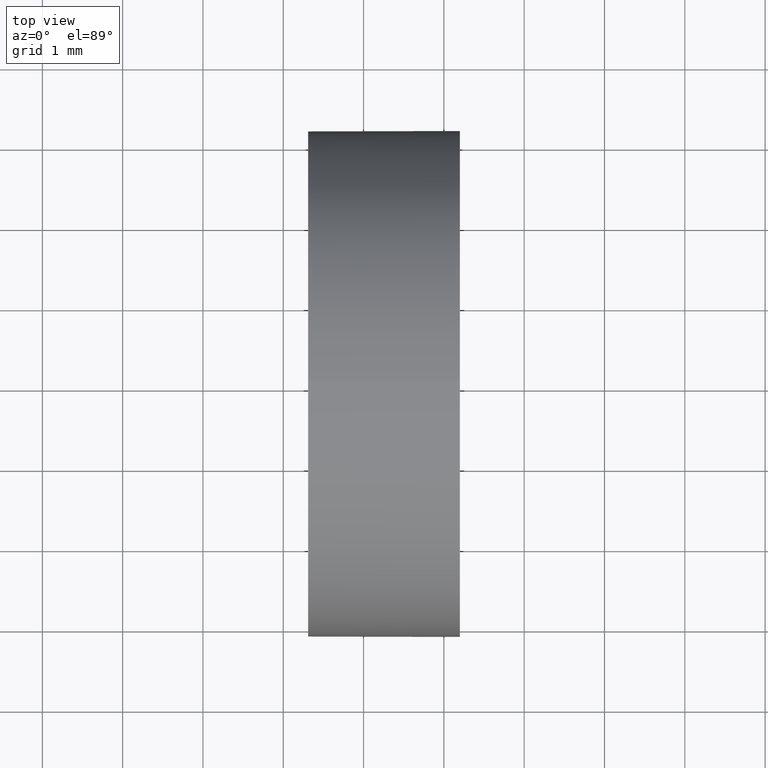
[diagram: clean part render]
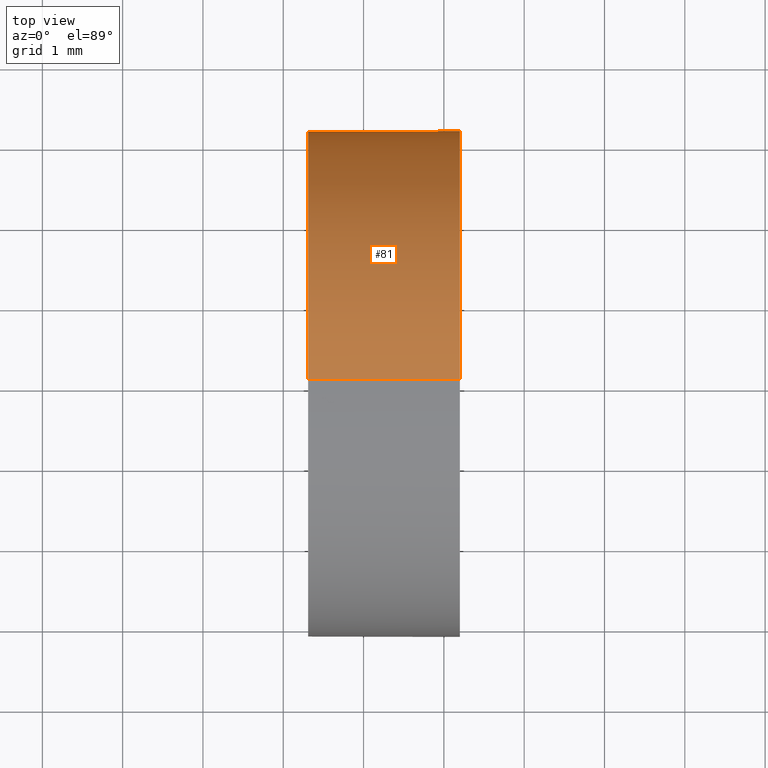
[diagram: same view with one face highlighted and labeled with its STEP entity id]
A machine part, top view. The second image highlights one B-rep face of the part: STEP entity #81.
In plain terms, the highlighted cylindrical surface (partial cylindrical patch) has radius 3.15 mm, axis along (-1, -0, -0).
Its self-contained STEP definition (entity closure, byte-faithful):
#3 = VERTEX_POINT ( 'NONE', #86 ) ;
#7 = CYLINDRICAL_SURFACE ( 'NONE', #36, 3.149999999999999900 ) ;
#11 = VERTEX_POINT ( 'NONE', #151 ) ;
#15 = EDGE_LOOP ( 'NONE', ( #181, #186, #124, #106, #93 ) ) ;
#16 = DIRECTION ( 'NONE',  ( 0.0000000000000000000, 0.0000000000000000000, 1.000000000000000000 ) ) ;
#17 = CARTESIAN_POINT ( 'NONE',  ( 24.19946052733276100, 16.18112609140304100, 3.857637417314165200E-016 ) ) ;
#23 = VERTEX_POINT ( 'NONE', #84 ) ;
#26 = CIRCLE ( 'NONE', #128, 3.149999999999998100 ) ;
#36 = AXIS2_PLACEMENT_3D ( 'NONE', #99, #72, #176 ) ;
#39 = EDGE_CURVE ( 'NONE', #62, #11, #127, .T. ) ;
#46 = AXIS2_PLACEMENT_3D ( 'NONE', #134, #107, #16 ) ;
#48 = DIRECTION ( 'NONE',  ( -1.000000000000000000, -0.0000000000000000000, -0.0000000000000000000 ) ) ;
#51 = EDGE_CURVE ( 'NONE', #3, #23, #26, .T. ) ;
#58 = DIRECTION ( 'NONE',  ( -1.000000000000000000, -0.0000000000000000000, -0.0000000000000000000 ) ) ;
#59 = FACE_OUTER_BOUND ( 'NONE', #15, .T. ) ;
#61 = DIRECTION ( 'NONE',  ( 0.0000000000000000000, 0.0000000000000000000, 1.000000000000000000 ) ) ;
#62 = VERTEX_POINT ( 'NONE', #17 ) ;
#69 = VERTEX_POINT ( 'NONE', #98 ) ;
#72 = DIRECTION ( 'NONE',  ( -1.000000000000000000, -0.0000000000000000000, -0.0000000000000000000 ) ) ;
#75 = LINE ( 'NONE', #155, #182 ) ;
#76 = CARTESIAN_POINT ( 'NONE',  ( 22.30926883257449200, 13.03112609140304000, 0.0000000000000000000 ) ) ;
#81 = ADVANCED_FACE ( 'NONE', ( #59 ), #7, .T. ) ;
#84 = CARTESIAN_POINT ( 'NONE',  ( 22.30926883257449200, 13.03112609140304000, -3.149999999999998100 ) ) ;
#86 = CARTESIAN_POINT ( 'NONE',  ( 22.30926883257449200, 13.03112609140304000, 3.149999999999998100 ) ) ;
#88 = VECTOR ( 'NONE', #48, 1000.000000000000000 ) ;
#89 = DIRECTION ( 'NONE',  ( -1.000000000000000000, -0.0000000000000000000, -0.0000000000000000000 ) ) ;
#93 = ORIENTED_EDGE ( 'NONE', *, *, #136, .T. ) ;
#97 = DIRECTION ( 'NONE',  ( 0.0000000000000000000, 0.0000000000000000000, 1.000000000000000000 ) ) ;
#98 = CARTESIAN_POINT ( 'NONE',  ( 24.19946052733276100, 13.03112609140304000, 3.150000000000001200 ) ) ;
#99 = CARTESIAN_POINT ( 'NONE',  ( 20.68403063513288800, 13.03112609140304000, 0.0000000000000000000 ) ) ;
#106 = ORIENTED_EDGE ( 'NONE', *, *, #183, .F. ) ;
#107 = DIRECTION ( 'NONE',  ( -1.000000000000000000, -0.0000000000000000000, -0.0000000000000000000 ) ) ;
#114 = LINE ( 'NONE', #160, #88 ) ;
#118 = CIRCLE ( 'NONE', #132, 3.150000000000001700 ) ;
#121 = CARTESIAN_POINT ( 'NONE',  ( 24.19946052733276100, 13.03112609140304000, 0.0000000000000000000 ) ) ;
#123 = EDGE_CURVE ( 'NONE', #11, #23, #75, .T. ) ;
#124 = ORIENTED_EDGE ( 'NONE', *, *, #51, .F. ) ;
#127 = CIRCLE ( 'NONE', #46, 3.150000000000001700 ) ;
#128 = AXIS2_PLACEMENT_3D ( 'NONE', #76, #171, #97 ) ;
#132 = AXIS2_PLACEMENT_3D ( 'NONE', #121, #89, #61 ) ;
#134 = CARTESIAN_POINT ( 'NONE',  ( 24.19946052733276100, 13.03112609140304000, 0.0000000000000000000 ) ) ;
#136 = EDGE_CURVE ( 'NONE', #69, #62, #118, .T. ) ;
#151 = CARTESIAN_POINT ( 'NONE',  ( 24.19946052733276100, 13.03112609140304000, -3.150000000000001200 ) ) ;
#155 = CARTESIAN_POINT ( 'NONE',  ( 20.68403063513288800, 13.03112609140304000, -3.149999999999999900 ) ) ;
#160 = CARTESIAN_POINT ( 'NONE',  ( 20.68403063513288800, 13.03112609140304000, 3.149999999999999900 ) ) ;
#171 = DIRECTION ( 'NONE',  ( -1.000000000000000000, -0.0000000000000000000, -0.0000000000000000000 ) ) ;
#176 = DIRECTION ( 'NONE',  ( 0.0000000000000000000, 0.0000000000000000000, 1.000000000000000000 ) ) ;
#181 = ORIENTED_EDGE ( 'NONE', *, *, #39, .T. ) ;
#182 = VECTOR ( 'NONE', #58, 1000.000000000000000 ) ;
#183 = EDGE_CURVE ( 'NONE', #69, #3, #114, .T. ) ;
#186 = ORIENTED_EDGE ( 'NONE', *, *, #123, .T. ) ;